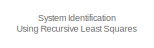
[diagram: root canvas - part 1/4, top left region]
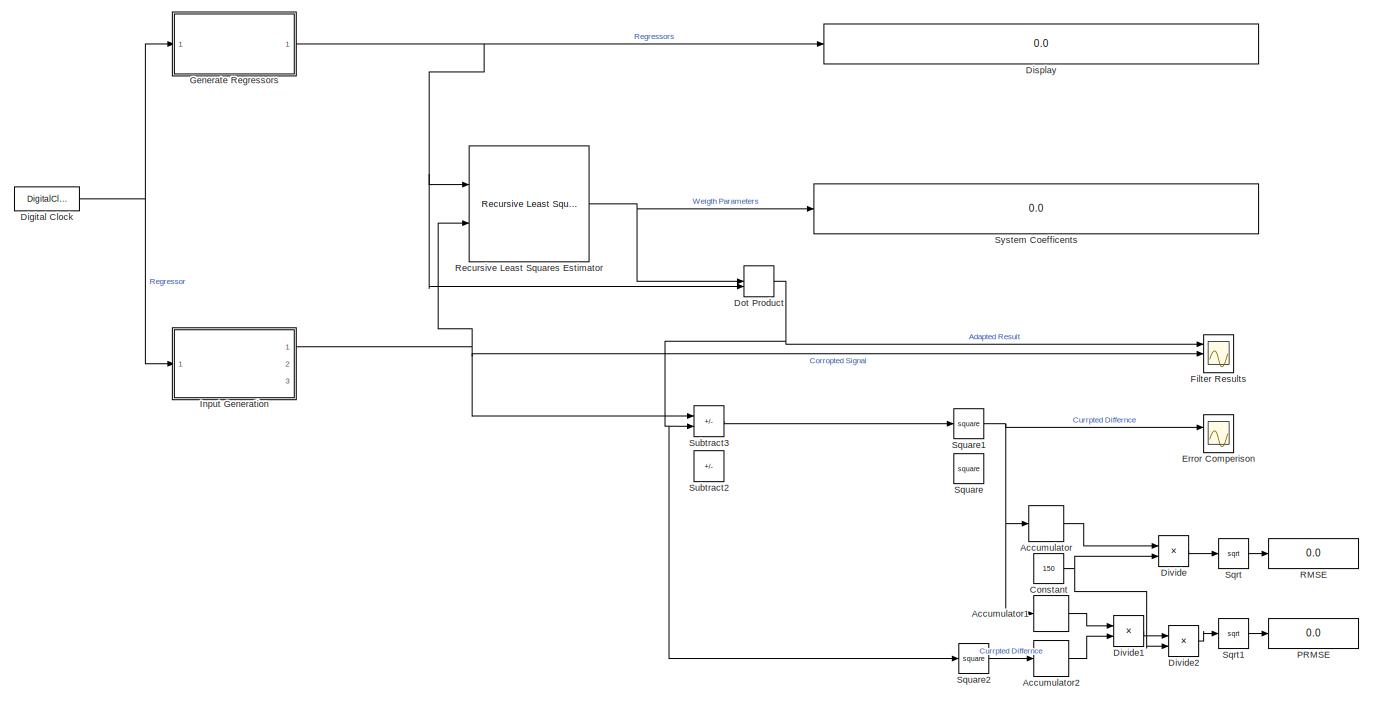
[diagram: root canvas - part 2/4, full width, top band]
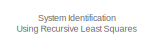
[diagram: root canvas - part 3/4, middle left region]
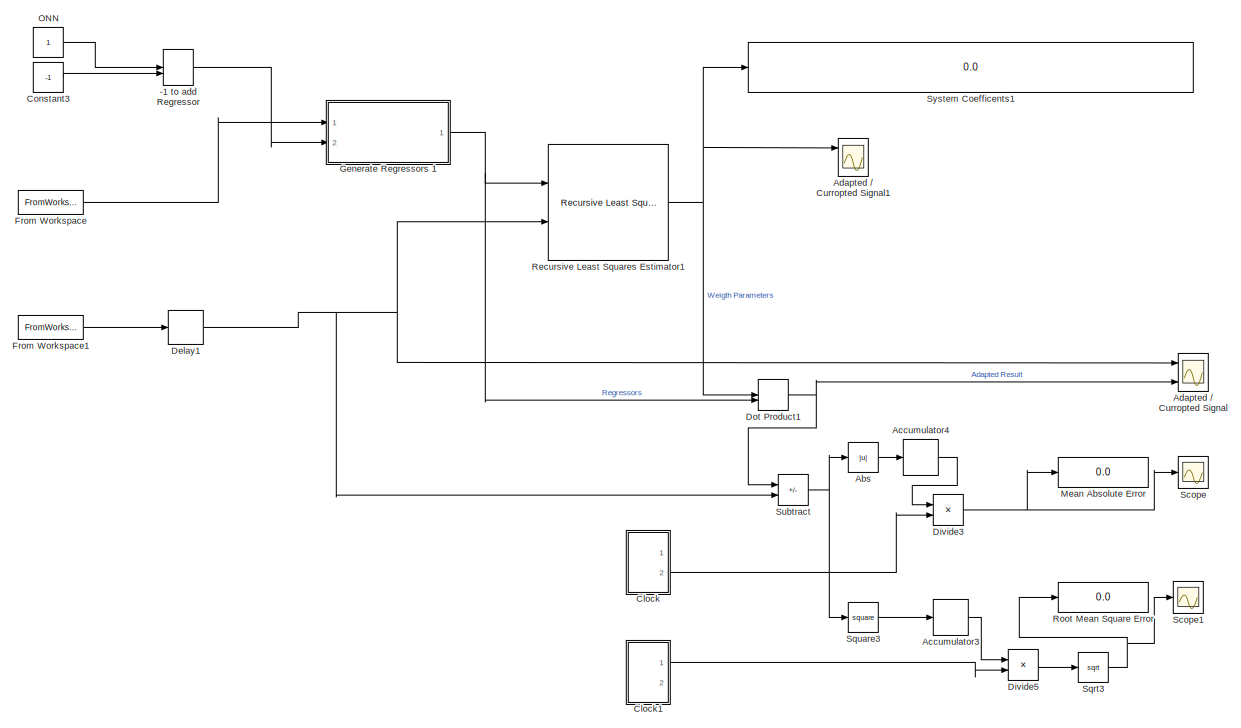
[diagram: root canvas - part 4/4, full width, bottom band]
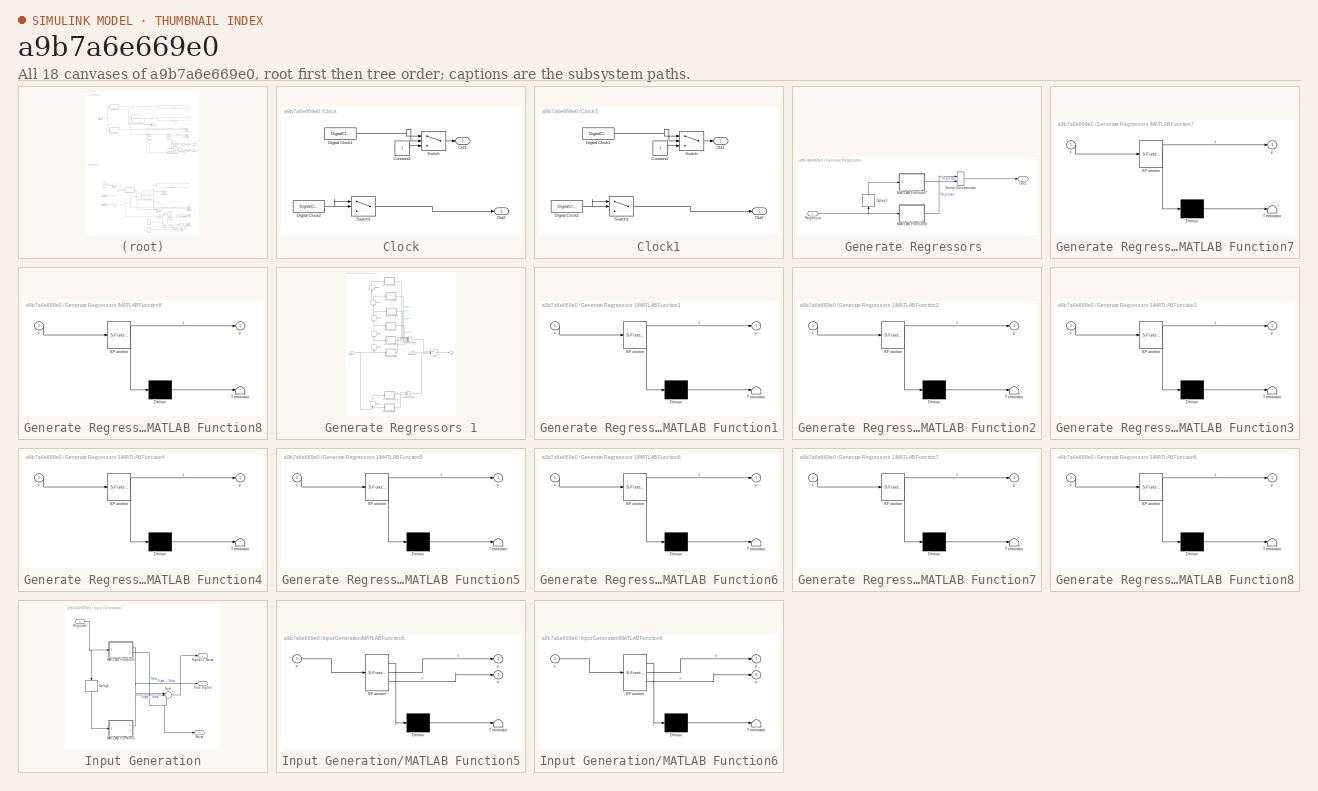
[diagram: thumbnail index - all 18 canvases of the model, root first then tree order]
MODEL slx_a9b7a6e669e0
KIND model
CONFIG AbsTol = auto
CONFIG EnableMultiTasking = off
CONFIG FixedStep = auto
CONFIG MaxStep = auto
CONFIG MinStep = auto
CONFIG RelTol = 1e-3
CONFIG SampleTimeConstraint = Unconstrained
CONFIG SolverName = VariableStepAuto
CONFIG StartTime = 0.0
CONFIG StopTime = 16384
WORKSPACE source: mxarray member
WORKSPACE deg = 4
BLOCK [ManualSwitch] -1 to add  Regressor
BLOCK [Abs] Abs
  SaturateOnIntegerOverflow = off
BLOCK [DiscreteIntegrator] Accumulator
  Commented = on
  ICPrevOutput = DiscIntNeverNeededParam
  ICPrevScaledInput = DiscIntNeverNeededParam
  InitialConditionSetting = Auto
  IntegratorMethod = Accumulation: Forward Euler
  Ports = [1, 1]
  SampleTime = -1
BLOCK [DiscreteIntegrator] Accumulator1
  Commented = on
  ICPrevOutput = DiscIntNeverNeededParam
  ICPrevScaledInput = DiscIntNeverNeededParam
  InitialConditionSetting = Auto
  IntegratorMethod = Accumulation: Forward Euler
  Ports = [1, 1]
  SampleTime = -1
BLOCK [DiscreteIntegrator] Accumulator2
  Commented = on
  ICPrevOutput = DiscIntNeverNeededParam
  ICPrevScaledInput = DiscIntNeverNeededParam
  InitialConditionSetting = Auto
  IntegratorMethod = Accumulation: Forward Euler
  Ports = [1, 1]
  SampleTime = -1
BLOCK [DiscreteIntegrator] Accumulator3
  ICPrevOutput = DiscIntNeverNeededParam
  ICPrevScaledInput = DiscIntNeverNeededParam
  InitialConditionSetting = Auto
  IntegratorMethod = Accumulation: Forward Euler
  Ports = [1, 1]
  SampleTime = -1
BLOCK [DiscreteIntegrator] Accumulator4
  ICPrevOutput = DiscIntNeverNeededParam
  ICPrevScaledInput = DiscIntNeverNeededParam
  InitialConditionSetting = Auto
  IntegratorMethod = Accumulation: Forward Euler
  Ports = [1, 1]
  SampleTime = -1
BLOCK [Scope] Adapted // Curropted Signal
  Floating = off
  NumInputPorts = 3
  Ports = [3]
  ScopeSpecificationString = Simulink.scopes.TimeScopeBlockCfg('CurrentConfiguration', extmgr.ConfigurationSet(extmgr.Configuration('Core','General UI',true),extmgr.Configuration('Core','Source UI',true),extmgr.Configuration('Sources','WiredSimulink',true,'DataLoggingVariableName','ScopeData1'),extmgr.Configuration('Visuals','Time Domain',true,'SerializedDisplays',{struct('MinYLimReal','-11519.75','MaxYLimReal','11437.75','YL...<+1714ch>
BLOCK [Scope] Adapted // Curropted Signal1
  Floating = off
  NumInputPorts = 3
  Ports = [3]
  ScopeSpecificationString = Simulink.scopes.TimeScopeBlockCfg('CurrentConfiguration', extmgr.ConfigurationSet(extmgr.Configuration('Core','General UI',true),extmgr.Configuration('Core','Source UI',true),extmgr.Configuration('Sources','WiredSimulink',true,'DataLoggingVariableName','ScopeData2'),extmgr.Configuration('Visuals','Time Domain',true,'SerializedDisplays',{struct('MinYLimReal','-580.49295','MaxYLimReal','558.44164','...<+1908ch>
BLOCK [SubSystem] Clock
  Ports = [0, 2]
  RequestExecContextInheritance = off
BLOCK [Constant] Clock/Constant2
BLOCK [DigitalClock] Clock/Digital Clock1
BLOCK [DigitalClock] Clock/Digital Clock2
BLOCK [Outport] Clock/Out1
BLOCK [Outport] Clock/Out2
  Port = 2
BLOCK [Switch] Clock/Switch
  Criteria = u2 > Threshold
  InputSameDT = off
  SaturateOnIntegerOverflow = off
BLOCK [Switch] Clock/Switch1
  Criteria = u2 > Threshold
  InputSameDT = off
  SaturateOnIntegerOverflow = off
  Threshold = 300
BLOCK [SubSystem] Clock1
  Ports = [0, 2]
  RequestExecContextInheritance = off
BLOCK [Constant] Clock1/Constant2
BLOCK [DigitalClock] Clock1/Digital Clock1
BLOCK [DigitalClock] Clock1/Digital Clock2
BLOCK [Outport] Clock1/Out1
BLOCK [Outport] Clock1/Out2
  Port = 2
BLOCK [Switch] Clock1/Switch
  Criteria = u2 > Threshold
  InputSameDT = off
  SaturateOnIntegerOverflow = off
BLOCK [Switch] Clock1/Switch1
  Criteria = u2 > Threshold
  InputSameDT = off
  SaturateOnIntegerOverflow = off
  Threshold = 300
BLOCK [Constant] Constant
  Commented = on
  Value = 150
BLOCK [Constant] Constant3
  Value = -1
BLOCK [Delay] Delay1
  DelayLength = 300
  InputPortMap = u0
  Ports = [1, 1]
BLOCK [DigitalClock] Digital Clock
  Commented = on
BLOCK [Display] Display
  Commented = on
  Decimation = 1
  Ports = [1]
BLOCK [Product] Divide
  Commented = on
  Inputs = */
  Ports = [2, 1]
BLOCK [Product] Divide1
  Commented = on
  Inputs = */
  Ports = [2, 1]
BLOCK [Product] Divide2
  Commented = on
  Inputs = */
  Ports = [2, 1]
BLOCK [Product] Divide3
  Inputs = */
  Ports = [2, 1]
BLOCK [Product] Divide5
  Inputs = */
  Ports = [2, 1]
BLOCK [DotProduct] Dot Product
  Commented = on
  OutDataTypeStr = Inherit: Inherit via internal rule
BLOCK [DotProduct] Dot Product1
  OutDataTypeStr = Inherit: Inherit via internal rule
BLOCK [Scope] Error Comperison
  Commented = on
  Floating = off
  NumInputPorts = 2
  Ports = [2]
  ScopeSpecificationString = Simulink.scopes.TimeScopeBlockCfg('CurrentConfiguration', extmgr.ConfigurationSet(extmgr.Configuration('Core','General UI',true),extmgr.Configuration('Core','Source UI',true),extmgr.Configuration('Sources','WiredSimulink',true,'DataLoggingVariableName','ScopeData1'),extmgr.Configuration('Visuals','Time Domain',true,'SerializedDisplays',{struct('MinYLimReal','-0.8306','MaxYLimReal','7.47537','YLabe...<+2030ch>
BLOCK [Scope] Filter Results
  Commented = on
  Floating = off
  NumInputPorts = 3
  Ports = [3]
  ScopeSpecificationString = Simulink.scopes.TimeScopeBlockCfg('CurrentConfiguration', extmgr.ConfigurationSet(extmgr.Configuration('Core','General UI',true),extmgr.Configuration('Core','Source UI',true),extmgr.Configuration('Sources','WiredSimulink',true,'DataLoggingVariableName','ScopeData1'),extmgr.Configuration('Visuals','Time Domain',true,'SerializedDisplays',{struct('MinYLimReal','-24.05967','MaxYLimReal','55.22495','YL...<+1693ch>
BLOCK [FromWorkspace] From Workspace
  SampleTime = -1
  VariableName = TX_Q_ts
BLOCK [FromWorkspace] From Workspace1
  SampleTime = -1
  VariableName = RX_Q_ts
BLOCK [SubSystem] Generate Regressors 
  Commented = on
  Ports = [1, 1]
  RequestExecContextInheritance = off
BLOCK [Delay] Generate Regressors /Delay3
  DelayLength = 1
  InputPortMap = u0
  NameLocation = left
  Ports = [1, 1]
  SampleTime = 1
BLOCK [SubSystem] Generate Regressors /MATLAB Function7
  ErrorFcn = Stateflow.Translate.translate
  NameLocation = right
  PermitHierarchicalResolution = ExplicitOnly
  Ports = [1, 1]
  RequestExecContextInheritance = off
  SFBlockType = MATLAB Function
  TreatAsAtomicUnit = on
BLOCK [Demux] Generate Regressors /MATLAB Function7/ Demux 
  Outputs = 1
  Ports = [1, 1]
BLOCK [S-Function] Generate Regressors /MATLAB Function7/ SFunction 
  EnableBusSupport = on
  FunctionName = sf_sfun
  PortCounts = [1 2]
  Ports = [1, 2]
  SFcnIsStateOwnerBlock = off
  SFunctionDeploymentMode = off
  Tag = Stateflow S-Function 8
BLOCK [Terminator] Generate Regressors /MATLAB Function7/ Terminator 
BLOCK [Inport] Generate Regressors /MATLAB Function7/x
BLOCK [Outport] Generate Regressors /MATLAB Function7/y
BLOCK [SubSystem] Generate Regressors /MATLAB Function8
  ErrorFcn = Stateflow.Translate.translate
  PermitHierarchicalResolution = ExplicitOnly
  Ports = [1, 1]
  RequestExecContextInheritance = off
  SFBlockType = MATLAB Function
  TreatAsAtomicUnit = on
BLOCK [Demux] Generate Regressors /MATLAB Function8/ Demux 
  Outputs = 1
  Ports = [1, 1]
BLOCK [S-Function] Generate Regressors /MATLAB Function8/ SFunction 
  EnableBusSupport = on
  FunctionName = sf_sfun
  PortCounts = [1 2]
  Ports = [1, 2]
  SFcnIsStateOwnerBlock = off
  SFunctionDeploymentMode = off
  Tag = Stateflow S-Function 2
BLOCK [Terminator] Generate Regressors /MATLAB Function8/ Terminator 
BLOCK [Inport] Generate Regressors /MATLAB Function8/x
BLOCK [Outport] Generate Regressors /MATLAB Function8/y
BLOCK [Outport] Generate Regressors /Out1
BLOCK [Inport] Generate Regressors /Regressor
BLOCK [Concatenate] Generate Regressors /Vector Concatenate
  Ports = [2, 1]
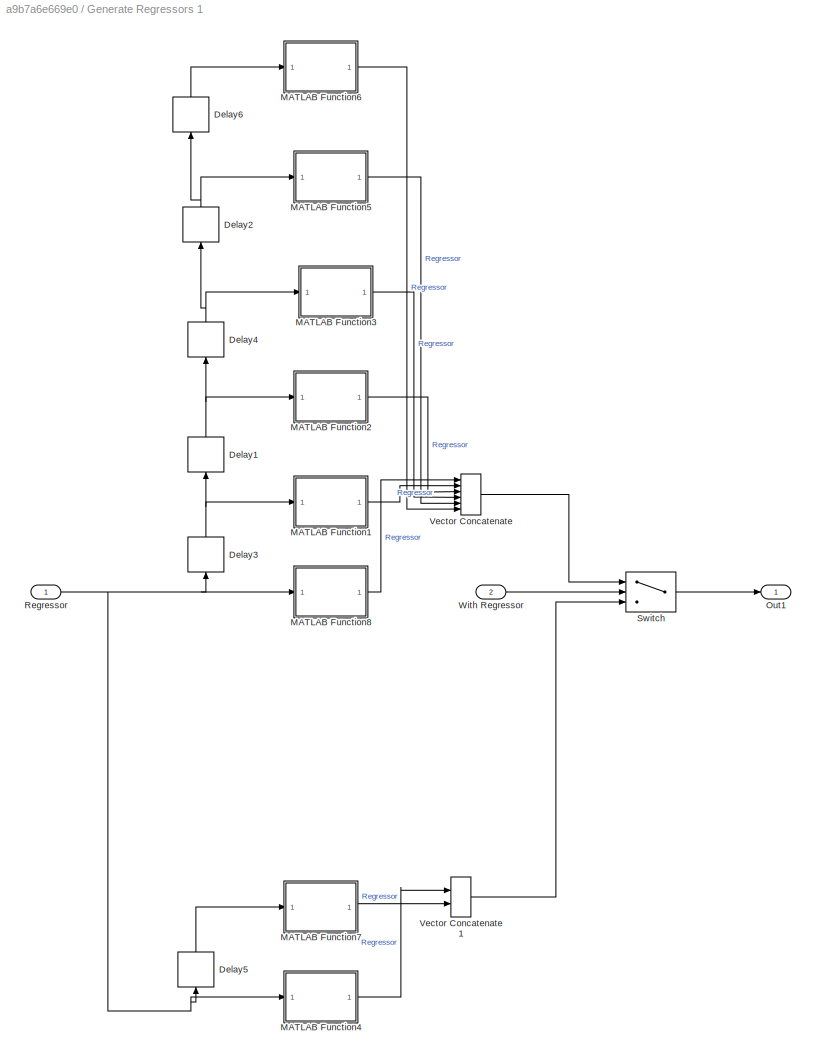
BLOCK [SubSystem] Generate Regressors 1
  Ports = [2, 1]
  RequestExecContextInheritance = off
BLOCK [Delay] Generate Regressors 1/Delay1
  DelayLength = 1
  InputPortMap = u0
  NameLocation = left
  Ports = [1, 1]
  SampleTime = 1
BLOCK [Delay] Generate Regressors 1/Delay2
  DelayLength = 1
  InputPortMap = u0
  NameLocation = left
  Ports = [1, 1]
  SampleTime = 1
BLOCK [Delay] Generate Regressors 1/Delay3
  DelayLength = 1
  InputPortMap = u0
  NameLocation = left
  Ports = [1, 1]
  SampleTime = 1
BLOCK [Delay] Generate Regressors 1/Delay4
  DelayLength = 1
  InputPortMap = u0
  NameLocation = left
  Ports = [1, 1]
  SampleTime = 1
BLOCK [Delay] Generate Regressors 1/Delay5
  DelayLength = 1
  InputPortMap = u0
  NameLocation = left
  Ports = [1, 1]
  SampleTime = 1
BLOCK [Delay] Generate Regressors 1/Delay6
  DelayLength = 1
  InputPortMap = u0
  NameLocation = left
  Ports = [1, 1]
  SampleTime = 1
BLOCK [SubSystem] Generate Regressors 1/MATLAB Function1
  ErrorFcn = Stateflow.Translate.translate
  PermitHierarchicalResolution = ExplicitOnly
  Ports = [1, 1]
  RequestExecContextInheritance = off
  SFBlockType = MATLAB Function
  TreatAsAtomicUnit = on
BLOCK [Demux] Generate Regressors 1/MATLAB Function1/ Demux 
  Outputs = 1
  Ports = [1, 1]
BLOCK [S-Function] Generate Regressors 1/MATLAB Function1/ SFunction 
  EnableBusSupport = on
  FunctionName = sf_sfun
  PortCounts = [1 2]
  Ports = [1, 2]
  SFcnIsStateOwnerBlock = off
  SFunctionDeploymentMode = off
  Tag = Stateflow S-Function 4
BLOCK [Terminator] Generate Regressors 1/MATLAB Function1/ Terminator 
BLOCK [Inport] Generate Regressors 1/MATLAB Function1/x
BLOCK [Outport] Generate Regressors 1/MATLAB Function1/y
BLOCK [SubSystem] Generate Regressors 1/MATLAB Function2
  ErrorFcn = Stateflow.Translate.translate
  PermitHierarchicalResolution = ExplicitOnly
  Ports = [1, 1]
  RequestExecContextInheritance = off
  SFBlockType = MATLAB Function
  TreatAsAtomicUnit = on
BLOCK [Demux] Generate Regressors 1/MATLAB Function2/ Demux 
  Outputs = 1
  Ports = [1, 1]
BLOCK [S-Function] Generate Regressors 1/MATLAB Function2/ SFunction 
  EnableBusSupport = on
  FunctionName = sf_sfun
  PortCounts = [1 2]
  Ports = [1, 2]
  SFcnIsStateOwnerBlock = off
  SFunctionDeploymentMode = off
  Tag = Stateflow S-Function 1
BLOCK [Terminator] Generate Regressors 1/MATLAB Function2/ Terminator 
BLOCK [Inport] Generate Regressors 1/MATLAB Function2/x
BLOCK [Outport] Generate Regressors 1/MATLAB Function2/y
BLOCK [SubSystem] Generate Regressors 1/MATLAB Function3
  ErrorFcn = Stateflow.Translate.translate
  PermitHierarchicalResolution = ExplicitOnly
  Ports = [1, 1]
  RequestExecContextInheritance = off
  SFBlockType = MATLAB Function
  TreatAsAtomicUnit = on
BLOCK [Demux] Generate Regressors 1/MATLAB Function3/ Demux 
  Outputs = 1
  Ports = [1, 1]
BLOCK [S-Function] Generate Regressors 1/MATLAB Function3/ SFunction 
  EnableBusSupport = on
  FunctionName = sf_sfun
  PortCounts = [1 2]
  Ports = [1, 2]
  SFcnIsStateOwnerBlock = off
  SFunctionDeploymentMode = off
  Tag = Stateflow S-Function 5
BLOCK [Terminator] Generate Regressors 1/MATLAB Function3/ Terminator 
BLOCK [Inport] Generate Regressors 1/MATLAB Function3/x
BLOCK [Outport] Generate Regressors 1/MATLAB Function3/y
BLOCK [SubSystem] Generate Regressors 1/MATLAB Function4
  ErrorFcn = Stateflow.Translate.translate
  PermitHierarchicalResolution = ExplicitOnly
  Ports = [1, 1]
  RequestExecContextInheritance = off
  SFBlockType = MATLAB Function
  TreatAsAtomicUnit = on
BLOCK [Demux] Generate Regressors 1/MATLAB Function4/ Demux 
  Outputs = 1
  Ports = [1, 1]
BLOCK [S-Function] Generate Regressors 1/MATLAB Function4/ SFunction 
  EnableBusSupport = on
  FunctionName = sf_sfun
  PortCounts = [1 2]
  Ports = [1, 2]
  SFcnIsStateOwnerBlock = off
  SFunctionDeploymentMode = off
  Tag = Stateflow S-Function 12
BLOCK [Terminator] Generate Regressors 1/MATLAB Function4/ Terminator 
BLOCK [Inport] Generate Regressors 1/MATLAB Function4/x
BLOCK [Outport] Generate Regressors 1/MATLAB Function4/y
BLOCK [SubSystem] Generate Regressors 1/MATLAB Function5
  ErrorFcn = Stateflow.Translate.translate
  PermitHierarchicalResolution = ExplicitOnly
  Ports = [1, 1]
  RequestExecContextInheritance = off
  SFBlockType = MATLAB Function
  TreatAsAtomicUnit = on
BLOCK [Demux] Generate Regressors 1/MATLAB Function5/ Demux 
  Outputs = 1
  Ports = [1, 1]
BLOCK [S-Function] Generate Regressors 1/MATLAB Function5/ SFunction 
  EnableBusSupport = on
  FunctionName = sf_sfun
  PortCounts = [1 2]
  Ports = [1, 2]
  SFcnIsStateOwnerBlock = off
  SFunctionDeploymentMode = off
  Tag = Stateflow S-Function 9
BLOCK [Terminator] Generate Regressors 1/MATLAB Function5/ Terminator 
BLOCK [Inport] Generate Regressors 1/MATLAB Function5/x
BLOCK [Outport] Generate Regressors 1/MATLAB Function5/y
BLOCK [SubSystem] Generate Regressors 1/MATLAB Function6
  ErrorFcn = Stateflow.Translate.translate
  PermitHierarchicalResolution = ExplicitOnly
  Ports = [1, 1]
  RequestExecContextInheritance = off
  SFBlockType = MATLAB Function
  TreatAsAtomicUnit = on
BLOCK [Demux] Generate Regressors 1/MATLAB Function6/ Demux 
  Outputs = 1
  Ports = [1, 1]
BLOCK [S-Function] Generate Regressors 1/MATLAB Function6/ SFunction 
  EnableBusSupport = on
  FunctionName = sf_sfun
  PortCounts = [1 2]
  Ports = [1, 2]
  SFcnIsStateOwnerBlock = off
  SFunctionDeploymentMode = off
  Tag = Stateflow S-Function 10
BLOCK [Terminator] Generate Regressors 1/MATLAB Function6/ Terminator 
BLOCK [Inport] Generate Regressors 1/MATLAB Function6/x
BLOCK [Outport] Generate Regressors 1/MATLAB Function6/y
BLOCK [SubSystem] Generate Regressors 1/MATLAB Function7
  ErrorFcn = Stateflow.Translate.translate
  NameLocation = right
  PermitHierarchicalResolution = ExplicitOnly
  Ports = [1, 1]
  RequestExecContextInheritance = off
  SFBlockType = MATLAB Function
  TreatAsAtomicUnit = on
BLOCK [Demux] Generate Regressors 1/MATLAB Function7/ Demux 
  Outputs = 1
  Ports = [1, 1]
BLOCK [S-Function] Generate Regressors 1/MATLAB Function7/ SFunction 
  EnableBusSupport = on
  FunctionName = sf_sfun
  PortCounts = [1 2]
  Ports = [1, 2]
  SFcnIsStateOwnerBlock = off
  SFunctionDeploymentMode = off
  Tag = Stateflow S-Function 13
BLOCK [Terminator] Generate Regressors 1/MATLAB Function7/ Terminator 
BLOCK [Inport] Generate Regressors 1/MATLAB Function7/x
BLOCK [Outport] Generate Regressors 1/MATLAB Function7/y
BLOCK [SubSystem] Generate Regressors 1/MATLAB Function8
  ErrorFcn = Stateflow.Translate.translate
  PermitHierarchicalResolution = ExplicitOnly
  Ports = [1, 1]
  RequestExecContextInheritance = off
  SFBlockType = MATLAB Function
  TreatAsAtomicUnit = on
BLOCK [Demux] Generate Regressors 1/MATLAB Function8/ Demux 
  Outputs = 1
  Ports = [1, 1]
BLOCK [S-Function] Generate Regressors 1/MATLAB Function8/ SFunction 
  EnableBusSupport = on
  FunctionName = sf_sfun
  PortCounts = [1 2]
  Ports = [1, 2]
  SFcnIsStateOwnerBlock = off
  SFunctionDeploymentMode = off
  Tag = Stateflow S-Function 3
BLOCK [Terminator] Generate Regressors 1/MATLAB Function8/ Terminator 
BLOCK [Inport] Generate Regressors 1/MATLAB Function8/x
BLOCK [Outport] Generate Regressors 1/MATLAB Function8/y
BLOCK [Outport] Generate Regressors 1/Out1
BLOCK [Inport] Generate Regressors 1/Regressor
BLOCK [Switch] Generate Regressors 1/Switch
  Criteria = u2 > Threshold
  InputSameDT = off
  SaturateOnIntegerOverflow = off
BLOCK [Concatenate] Generate Regressors 1/Vector Concatenate
  NumInputs = 6
  Ports = [6, 1]
BLOCK [Concatenate] Generate Regressors 1/Vector Concatenate1
  Ports = [2, 1]
BLOCK [Inport] Generate Regressors 1/With Regressor
  NameLocation = top
  Port = 2
BLOCK [SubSystem] Input Generation
  Commented = on
  Ports = [1, 3]
  RequestExecContextInheritance = off
BLOCK [Delay] Input Generation/Delay1
  DelayLength = 1
  InputPortMap = u0
  NameLocation = left
  Ports = [1, 1]
  SampleTime = 1
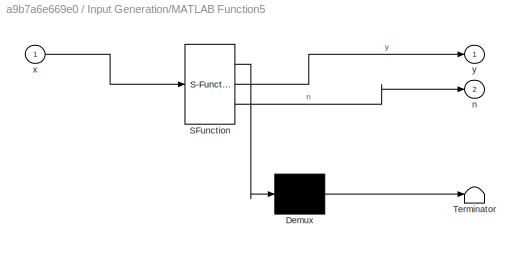
BLOCK [SubSystem] Input Generation/MATLAB Function5
  ErrorFcn = Stateflow.Translate.translate
  PermitHierarchicalResolution = ExplicitOnly
  Ports = [1, 2]
  RequestExecContextInheritance = off
  SFBlockType = MATLAB Function
  TreatAsAtomicUnit = on
BLOCK [Demux] Input Generation/MATLAB Function5/ Demux 
  Outputs = 1
  Ports = [1, 1]
BLOCK [S-Function] Input Generation/MATLAB Function5/ SFunction 
  EnableBusSupport = on
  FunctionName = sf_sfun
  PortCounts = [1 3]
  Ports = [1, 3]
  SFcnIsStateOwnerBlock = off
  SFunctionDeploymentMode = off
  Tag = Stateflow S-Function 6
BLOCK [Terminator] Input Generation/MATLAB Function5/ Terminator 
BLOCK [Outport] Input Generation/MATLAB Function5/n
  Port = 2
BLOCK [Inport] Input Generation/MATLAB Function5/x
BLOCK [Outport] Input Generation/MATLAB Function5/y
BLOCK [SubSystem] Input Generation/MATLAB Function6
  ErrorFcn = Stateflow.Translate.translate
  PermitHierarchicalResolution = ExplicitOnly
  Ports = [1, 2]
  RequestExecContextInheritance = off
  SFBlockType = MATLAB Function
  TreatAsAtomicUnit = on
BLOCK [Demux] Input Generation/MATLAB Function6/ Demux 
  Outputs = 1
  Ports = [1, 1]
BLOCK [S-Function] Input Generation/MATLAB Function6/ SFunction 
  EnableBusSupport = on
  FunctionName = sf_sfun
  PortCounts = [1 3]
  Ports = [1, 3]
  SFcnIsStateOwnerBlock = off
  SFunctionDeploymentMode = off
  Tag = Stateflow S-Function 7
BLOCK [Terminator] Input Generation/MATLAB Function6/ Terminator 
BLOCK [Outport] Input Generation/MATLAB Function6/n
  Port = 2
BLOCK [Inport] Input Generation/MATLAB Function6/x
BLOCK [Outport] Input Generation/MATLAB Function6/y
BLOCK [Outport] Input Generation/Noise
  Port = 2
BLOCK [Outport] Input Generation/Pure Signal
  Port = 3
BLOCK [Inport] Input Generation/Regressor
BLOCK [Outport] Input Generation/Signal + Noise
BLOCK [Sum] Input Generation/Sum
  Inputs = |+++
  Ports = [3, 1]
BLOCK [Display] Mean Absolute Error
  Decimation = 1
  Ports = [1]
BLOCK [Constant] ONN
BLOCK [Display] PRMSE
  Commented = on
  Decimation = 1
  Ports = [1]
BLOCK [Display] RMSE
  Commented = on
  Decimation = 1
  Ports = [1]
BLOCK [Reference] Recursive Least Squares Estimator  REF=ctrlSharedLib/Recursive Least Squares Estimator
  AttributesFormatString = Recursive Least Squares Estimator
  Commented = on
  Description = Recursive Least Squares Estimator
  Ports = [2, 1]
  SourceBlock = ctrlSharedLib/Recursive Least Squares Estimator
  SourceProductBaseCode = CT,ID
  SourceType = idEstimatorsRLS
  Tag = Recursive Least Squares Estimator
BLOCK [Reference] Recursive Least Squares Estimator1  REF=ctrlSharedLib/Recursive Least Squares Estimator
  AttributesFormatString = Recursive Least Squares Estimator
  Description = Recursive Least Squares Estimator
  Ports = [2, 1]
  SourceBlock = ctrlSharedLib/Recursive Least Squares Estimator
  SourceProductBaseCode = CT,ID
  SourceType = idEstimatorsRLS
  Tag = Recursive Least Squares Estimator
BLOCK [Display] Root Mean Square Error
  Decimation = 1
  Ports = [1]
BLOCK [Scope] Scope
  Floating = off
  NumInputPorts = 1
  Ports = [1]
  ScopeSpecificationString = Simulink.scopes.TimeScopeBlockCfg('CurrentConfiguration', extmgr.ConfigurationSet(extmgr.Configuration('Core','General UI',true),extmgr.Configuration('Core','Source UI',true),extmgr.Configuration('Sources','WiredSimulink',true,'DataLoggingVariableName','ScopeData2'),extmgr.Configuration('Visuals','Time Domain',true,'SerializedDisplays',{struct('MinYLimReal','-183.88512','MaxYLimReal','1659.0968','...<+1380ch>
BLOCK [Scope] Scope1
  Floating = off
  NumInputPorts = 1
  Ports = [1]
  ScopeSpecificationString = Simulink.scopes.TimeScopeBlockCfg('CurrentConfiguration', extmgr.ConfigurationSet(extmgr.Configuration('Core','General UI',true),extmgr.Configuration('Core','Source UI',true),extmgr.Configuration('Sources','WiredSimulink',true,'DataLoggingVariableName','ScopeData1'),extmgr.Configuration('Visuals','Time Domain',true,'SerializedDisplays',{struct('MinYLimReal','-238.02833','MaxYLimReal','2142.255','Y...<+1374ch>
BLOCK [Sqrt] Sqrt
  Commented = on
BLOCK [Sqrt] Sqrt1
  Commented = on
BLOCK [Sqrt] Sqrt3
BLOCK [Math] Square
  Commented = on
  Operator = square
  Ports = [1, 1]
BLOCK [Math] Square1
  Commented = on
  Operator = square
  Ports = [1, 1]
BLOCK [Math] Square2
  Commented = on
  Operator = square
  Ports = [1, 1]
BLOCK [Math] Square3
  Operator = square
  Ports = [1, 1]
BLOCK [Sum] Subtract
  IconShape = rectangular
  Inputs = +-
  Ports = [2, 1]
BLOCK [Sum] Subtract2
  Commented = on
  IconShape = rectangular
  Inputs = +-
  Ports = [2, 1]
BLOCK [Sum] Subtract3
  Commented = on
  IconShape = rectangular
  Inputs = +-
  Ports = [2, 1]
BLOCK [Display] System Coefficents
  Commented = on
  Decimation = 1
  Ports = [1]
BLOCK [Display] System Coefficents1
  Decimation = 1
  Ports = [1]
ANNOTATION (root): System Identification Using Recursive Least Squares
LINE -1 to add  Regressor:1 -> Generate Regressors 1:2
LINE Abs:1 -> Accumulator4:1
LINE Accumulator1:1 -> Divide1:1
LINE Accumulator2:1 -> Divide1:2
LINE Accumulator3:1 -> Divide5:1
LINE Accumulator4:1 -> Divide3:1
LINE Accumulator:1 -> Divide:1
LINE Clock/Constant2:1 -> Clock/Switch:3
NET Clock/Digital Clock1:1 -> Clock/Switch:1, Clock/Switch:2
NET Clock/Digital Clock2:1 -> Clock/Switch1:1, Clock/Switch1:2
LINE Clock/Switch1:1 -> Clock/Out2:1
LINE Clock/Switch:1 -> Clock/Out1:1
LINE Clock1/Constant2:1 -> Clock1/Switch:3
NET Clock1/Digital Clock1:1 -> Clock1/Switch:1, Clock1/Switch:2
NET Clock1/Digital Clock2:1 -> Clock1/Switch1:1, Clock1/Switch1:2
LINE Clock1/Switch1:1 -> Clock1/Out2:1
LINE Clock1/Switch:1 -> Clock1/Out1:1
LINE Clock1:1 -> Divide5:2
LINE Clock:2 -> Divide3:2
LINE Constant3:1 -> -1 to add  Regressor:2
NET Constant:1 -> Divide2:2, Divide:2
NET Delay1:1 -> Adapted // Curropted Signal:1, Recursive Least Squares Estimator1:2, Subtract:2
NET Digital Clock:1 -> Generate Regressors :1, Input Generation:1
LINE Divide1:1 -> Divide2:1
LINE Divide2:1 -> Sqrt1:1
NET Divide3:1 -> Mean Absolute Error:1, Scope:1
LINE Divide5:1 -> Sqrt3:1
LINE Divide:1 -> Sqrt:1
NET Dot Product1:1 -> Adapted // Curropted Signal:3, Subtract:1
NET Dot Product:1 -> Filter Results:1, Square2:1, Subtract3:2
LINE From Workspace1:1 -> Delay1:1
LINE From Workspace:1 -> Generate Regressors 1:1
LINE Generate Regressors /Delay3:1 -> Generate Regressors /MATLAB Function7:1
LINE Generate Regressors /MATLAB Function7:1 -> Generate Regressors /Vector Concatenate:2
LINE Generate Regressors /MATLAB Function8:1 -> Generate Regressors /Vector Concatenate:1
NET Generate Regressors /Regressor:1 -> Generate Regressors /Delay3:1, Generate Regressors /MATLAB Function8:1
LINE Generate Regressors /Vector Concatenate:1 -> Generate Regressors /Out1:1
NET Generate Regressors 1/Delay1:1 -> Generate Regressors 1/Delay4:1, Generate Regressors 1/MATLAB Function2:1
NET Generate Regressors 1/Delay2:1 -> Generate Regressors 1/Delay6:1, Generate Regressors 1/MATLAB Function5:1
NET Generate Regressors 1/Delay3:1 -> Generate Regressors 1/Delay1:1, Generate Regressors 1/MATLAB Function1:1
NET Generate Regressors 1/Delay4:1 -> Generate Regressors 1/Delay2:1, Generate Regressors 1/MATLAB Function3:1
LINE Generate Regressors 1/Delay5:1 -> Generate Regressors 1/MATLAB Function7:1
LINE Generate Regressors 1/Delay6:1 -> Generate Regressors 1/MATLAB Function6:1
LINE Generate Regressors 1/MATLAB Function1:1 -> Generate Regressors 1/Vector Concatenate:2
LINE Generate Regressors 1/MATLAB Function2:1 -> Generate Regressors 1/Vector Concatenate:3
LINE Generate Regressors 1/MATLAB Function3:1 -> Generate Regressors 1/Vector Concatenate:4
LINE Generate Regressors 1/MATLAB Function4:1 -> Generate Regressors 1/Vector Concatenate1:1
LINE Generate Regressors 1/MATLAB Function5:1 -> Generate Regressors 1/Vector Concatenate:5
LINE Generate Regressors 1/MATLAB Function6:1 -> Generate Regressors 1/Vector Concatenate:6
LINE Generate Regressors 1/MATLAB Function7:1 -> Generate Regressors 1/Vector Concatenate1:2
LINE Generate Regressors 1/MATLAB Function8:1 -> Generate Regressors 1/Vector Concatenate:1
NET Generate Regressors 1/Regressor:1 -> Generate Regressors 1/Delay3:1, Generate Regressors 1/Delay5:1, Generate Regressors 1/MATLAB Function4:1, Generate Regressors 1/MATLAB Function8:1
LINE Generate Regressors 1/Switch:1 -> Generate Regressors 1/Out1:1
LINE Generate Regressors 1/Vector Concatenate1:1 -> Generate Regressors 1/Switch:3
LINE Generate Regressors 1/Vector Concatenate:1 -> Generate Regressors 1/Switch:1
LINE Generate Regressors 1/With Regressor:1 -> Generate Regressors 1/Switch:2
NET Generate Regressors 1:1 -> Dot Product1:2, Recursive Least Squares Estimator1:1
NET Generate Regressors :1 -> Display:1, Dot Product:2, Recursive Least Squares Estimator:1
LINE Input Generation/Delay1:1 -> Input Generation/MATLAB Function5:1
LINE Input Generation/MATLAB Function5:1 -> Input Generation/Sum:2
NET Input Generation/MATLAB Function6:1 -> Input Generation/Pure Signal:1, Input Generation/Sum:1
NET Input Generation/MATLAB Function6:2 -> Input Generation/Noise:1, Input Generation/Sum:3
NET Input Generation/Regressor:1 -> Input Generation/Delay1:1, Input Generation/MATLAB Function6:1
LINE Input Generation/Sum:1 -> Input Generation/Signal + Noise:1
NET Input Generation:1 -> Filter Results:2, Recursive Least Squares Estimator:2, Subtract3:1
LINE ONN:1 -> -1 to add  Regressor:1
NET Recursive Least Squares Estimator1:1 -> Adapted // Curropted Signal1:1, Dot Product1:1, System Coefficents1:1
NET Recursive Least Squares Estimator:1 -> Dot Product:1, System Coefficents:1
LINE Sqrt1:1 -> PRMSE:1
NET Sqrt3:1 -> Root Mean Square Error:1, Scope1:1
LINE Sqrt:1 -> RMSE:1
NET Square1:1 -> Accumulator1:1, Accumulator:1, Error Comperison:1
LINE Square2:1 -> Accumulator2:1
LINE Square3:1 -> Accumulator3:1
LINE Subtract3:1 -> Square1:1
NET Subtract:1 -> Abs:1, Square3:1
note: NET lines group one-source signal fan-out (src -> all destinations, sorted); 1:1 wires keep LINE
CHART Generate Regressors /MATLAB Function8 states=1 transitions=1
  STATE_LABEL 'eML_blk_kernel()'
  STATE_LABEL 'SCRIPT:\nfunction y = fcn(x)\n\n\nc = sin(x*pi/5);\n\ny = [c^4,c^3,c^2,c,1];'
CHART Generate Regressors 1/MATLAB Function8 states=1 transitions=1
  STATE_LABEL 'eML_blk_kernel()'
  STATE_LABEL 'SCRIPT:\nfunction y = fcn(x)\n\ny = x;'
CHART Generate Regressors 1/MATLAB Function1 states=1 transitions=1
  STATE_LABEL 'eML_blk_kernel()'
  STATE_LABEL 'SCRIPT:\nfunction y = fcn(x)\n\ny = x;'
CHART Generate Regressors 1/MATLAB Function3 states=1 transitions=1
  STATE_LABEL 'eML_blk_kernel()'
  STATE_LABEL 'SCRIPT:\nfunction y = fcn(x)\n\ny = x;'
CHART Input Generation/MATLAB Function5 states=1 transitions=1
  STATE_LABEL 'eML_blk_kernel()'
  STATE_LABEL 'SCRIPT:\nfunction [y,n] = fcn(x)\n\n\nn=10*normrnd(0,2);\nc = sin(x*pi/5);\n\n% if mod(x,4) == 3 \n%     n=5*normrnd(0,2);\n% else\n%     n=2*normrnd(0,2);\n% end\n\ny = 0.09*c^4 -2.2*c^3 + 8.0*c^2 -14*c;\n'
CHART Input Generation/MATLAB Function6 states=1 transitions=1
  STATE_LABEL 'eML_blk_kernel()'
  STATE_LABEL 'SCRIPT:\nfunction [y,n] = fcn(x)\n\n\nn=0.5*normrnd(0,2);\nc = sin(x*pi/5);\n\n% if mod(x,4) == 3 \n%     n=5*normrnd(0,2);\n% else\n%     n=2*normrnd(0,2);\n% end\n\ny = 0.07*c^4 -1.9*c^3 + 7.9*c^2 -13*c;\n'
CHART Generate Regressors /MATLAB Function7 states=1 transitions=1
  STATE_LABEL 'eML_blk_kernel()'
  STATE_LABEL 'SCRIPT:\nfunction y = fcn(x)\n\nc = sin(x*pi/5);\n\ny = [c^4,c^3,c^2,c,1];'
CHART Generate Regressors 1/MATLAB Function5 states=1 transitions=1
  STATE_LABEL 'eML_blk_kernel()'
  STATE_LABEL 'SCRIPT:\nfunction y = fcn(x)\n\ny = x;'
CHART Generate Regressors 1/MATLAB Function6 states=1 transitions=1
  STATE_LABEL 'eML_blk_kernel()'
  STATE_LABEL 'SCRIPT:\nfunction y = fcn(x)\n\ny = x;'
CHART Generate Regressors 1/MATLAB Function2 states=1 transitions=1
  STATE_LABEL 'eML_blk_kernel()'
  STATE_LABEL 'SCRIPT:\nfunction y = fcn(x)\n\ny = x;'
CHART Generate Regressors 1/MATLAB Function4 states=1 transitions=1
  STATE_LABEL 'eML_blk_kernel()'
  STATE_LABEL 'SCRIPT:\nfunction y = fcn(x)\n\nc=x;\n\ny = [c^2,c,1];'
CHART Generate Regressors 1/MATLAB Function7 states=1 transitions=1
  STATE_LABEL 'eML_blk_kernel()'
  STATE_LABEL 'SCRIPT:\nfunction y = fcn(x)\n\nc = x;\n\ny = [c^2,c,1];'
CHART  states=0 transitions=0
CHART  states=0 transitions=0
CHART  states=0 transitions=0
CHART  states=0 transitions=0
CHART  states=0 transitions=0
CHART  states=0 transitions=0
CHART  states=0 transitions=0
CHART  states=0 transitions=0
CHART  states=0 transitions=0
CHART  states=0 transitions=0
CHART  states=0 transitions=0
CHART  states=0 transitions=0
